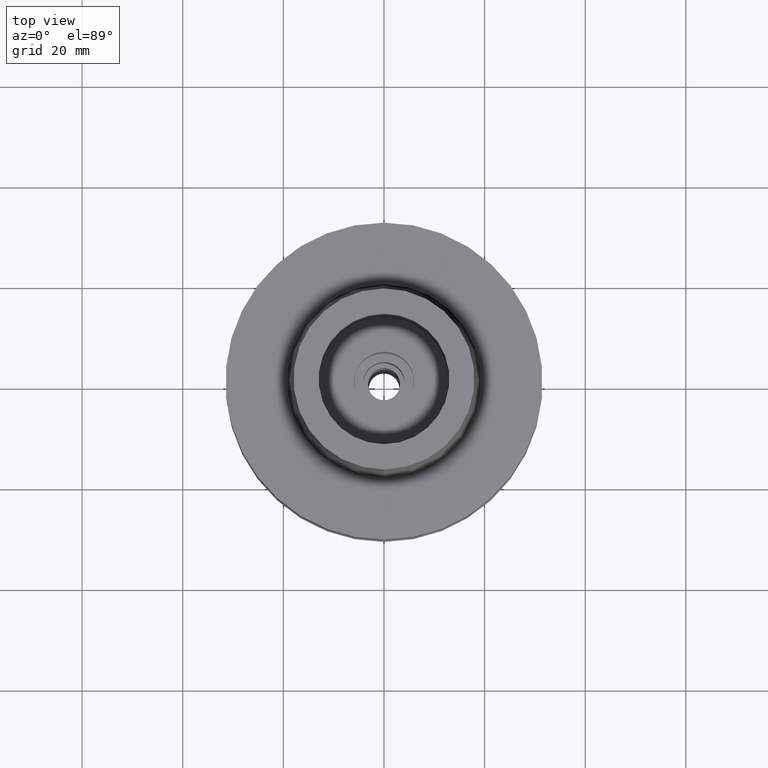
[diagram: clean part render]
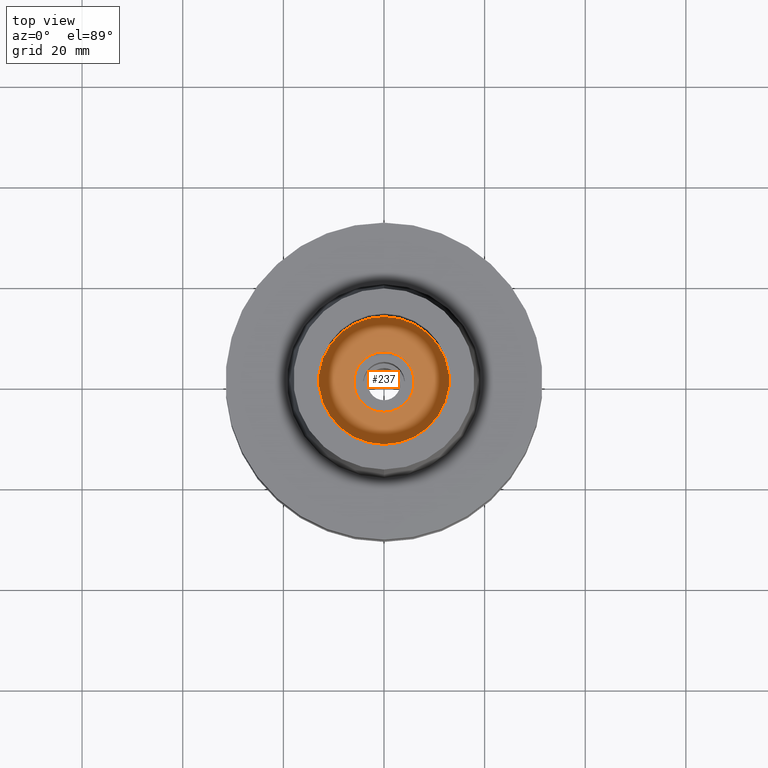
[diagram: same view with one face highlighted and labeled with its STEP entity id]
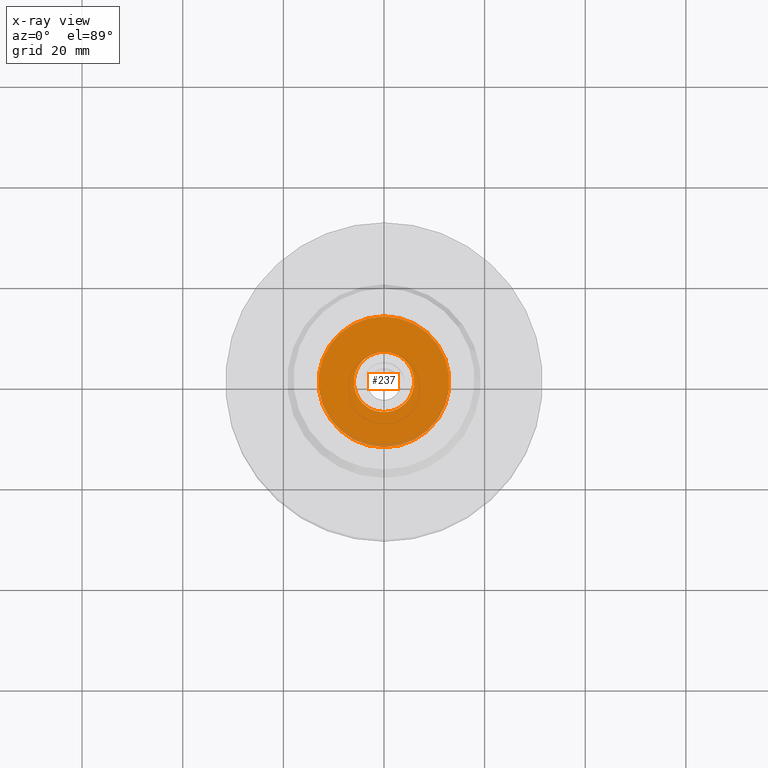
[diagram: x-ray of the same camera — body ghosted, the highlighted face saturated]
A machine part, top view. The second image highlights one B-rep face of the part: STEP entity #237.
The next image is the same camera in x-ray: the body ghosted, the highlighted face saturated — about 4% of this face is hidden behind the body in this view.
In plain terms, the highlighted planar face has unit normal (0, 0, 1).
Its self-contained STEP definition (entity closure, byte-faithful):
#38 = VERTEX_POINT ( 'NONE', #1711 ) ;
#48 = DIRECTION ( 'NONE',  ( 1.000000000000000000, 0.0000000000000000000, 0.0000000000000000000 ) ) ;
#84 = CARTESIAN_POINT ( 'NONE',  ( 0.0000000000000000000, 0.0000000000000000000, -9.950000000000001066 ) ) ;
#111 = VERTEX_POINT ( 'NONE', #852 ) ;
#143 = CIRCLE ( 'NONE', #2495, 13.00000000000000000 ) ;
#205 = DIRECTION ( 'NONE',  ( 0.0000000000000000000, 0.0000000000000000000, 1.000000000000000000 ) ) ;
#211 = CARTESIAN_POINT ( 'NONE',  ( 0.0000000000000000000, 0.0000000000000000000, -9.950000000000001066 ) ) ;
#237 = ADVANCED_FACE ( 'NONE', ( #1984, #488 ), #1126, .T. ) ;
#370 = EDGE_CURVE ( 'NONE', #38, #111, #1759, .T. ) ;
#431 = CARTESIAN_POINT ( 'NONE',  ( 0.0000000000000000000, 0.0000000000000000000, -9.950000000000001066 ) ) ;
#459 = DIRECTION ( 'NONE',  ( 0.0000000000000000000, 0.0000000000000000000, 1.000000000000000000 ) ) ;
#488 = FACE_BOUND ( 'NONE', #2703, .T. ) ;
#555 = CIRCLE ( 'NONE', #2767, 6.000000000000000000 ) ;
#591 = DIRECTION ( 'NONE',  ( 0.0000000000000000000, 1.000000000000000000, 0.0000000000000000000 ) ) ;
#668 = DIRECTION ( 'NONE',  ( 0.0000000000000000000, 1.000000000000000000, 0.0000000000000000000 ) ) ;
#808 = DIRECTION ( 'NONE',  ( 0.0000000000000000000, -1.000000000000000000, 0.0000000000000000000 ) ) ;
#852 = CARTESIAN_POINT ( 'NONE',  ( 0.0000000000000000000, 13.00000000000000000, -9.950000000000001066 ) ) ;
#858 = ORIENTED_EDGE ( 'NONE', *, *, #1505, .F. ) ;
#1009 = EDGE_LOOP ( 'NONE', ( #2660, #2299 ) ) ;
#1030 = AXIS2_PLACEMENT_3D ( 'NONE', #2395, #459, #48 ) ;
#1094 = DIRECTION ( 'NONE',  ( 0.0000000000000000000, 0.0000000000000000000, -1.000000000000000000 ) ) ;
#1126 = PLANE ( 'NONE',  #1030 ) ;
#1245 = AXIS2_PLACEMENT_3D ( 'NONE', #2589, #205, #591 ) ;
#1308 = DIRECTION ( 'NONE',  ( 0.0000000000000000000, -1.000000000000000000, 0.0000000000000000000 ) ) ;
#1505 = EDGE_CURVE ( 'NONE', #1971, #2687, #555, .T. ) ;
#1551 = CARTESIAN_POINT ( 'NONE',  ( 0.0000000000000000000, 6.000000000000000000, -9.950000000000001066 ) ) ;
#1592 = ORIENTED_EDGE ( 'NONE', *, *, #2513, .F. ) ;
#1711 = CARTESIAN_POINT ( 'NONE',  ( 0.0000000000000000000, -13.00000000000000000, -9.950000000000001066 ) ) ;
#1759 = CIRCLE ( 'NONE', #2478, 13.00000000000000000 ) ;
#1804 = DIRECTION ( 'NONE',  ( 0.0000000000000000000, 0.0000000000000000000, -1.000000000000000000 ) ) ;
#1894 = CIRCLE ( 'NONE', #1245, 6.000000000000000000 ) ;
#1930 = DIRECTION ( 'NONE',  ( 0.0000000000000000000, 0.0000000000000000000, 1.000000000000000000 ) ) ;
#1964 = CARTESIAN_POINT ( 'NONE',  ( 0.0000000000000000000, -6.000000000000000000, -9.950000000000001066 ) ) ;
#1971 = VERTEX_POINT ( 'NONE', #1964 ) ;
#1984 = FACE_OUTER_BOUND ( 'NONE', #1009, .T. ) ;
#2299 = ORIENTED_EDGE ( 'NONE', *, *, #370, .F. ) ;
#2395 = CARTESIAN_POINT ( 'NONE',  ( 0.0000000000000000000, 0.0000000000000000000, -9.950000000000001066 ) ) ;
#2478 = AXIS2_PLACEMENT_3D ( 'NONE', #431, #1094, #1308 ) ;
#2495 = AXIS2_PLACEMENT_3D ( 'NONE', #84, #1804, #668 ) ;
#2513 = EDGE_CURVE ( 'NONE', #2687, #1971, #1894, .T. ) ;
#2589 = CARTESIAN_POINT ( 'NONE',  ( 0.0000000000000000000, 0.0000000000000000000, -9.950000000000001066 ) ) ;
#2660 = ORIENTED_EDGE ( 'NONE', *, *, #2755, .F. ) ;
#2687 = VERTEX_POINT ( 'NONE', #1551 ) ;
#2703 = EDGE_LOOP ( 'NONE', ( #1592, #858 ) ) ;
#2755 = EDGE_CURVE ( 'NONE', #111, #38, #143, .T. ) ;
#2767 = AXIS2_PLACEMENT_3D ( 'NONE', #211, #1930, #808 ) ;